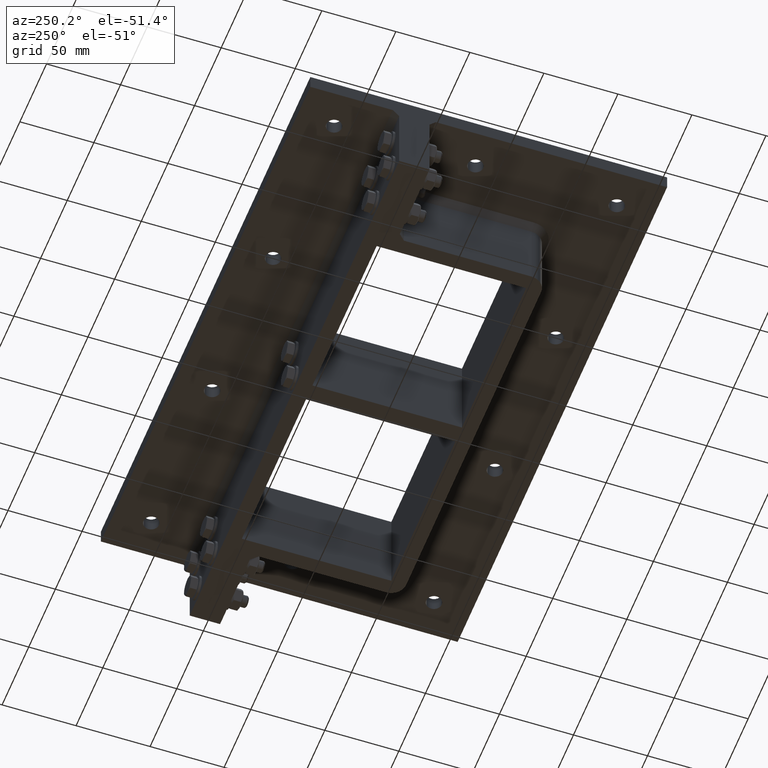
[diagram: clean part render]
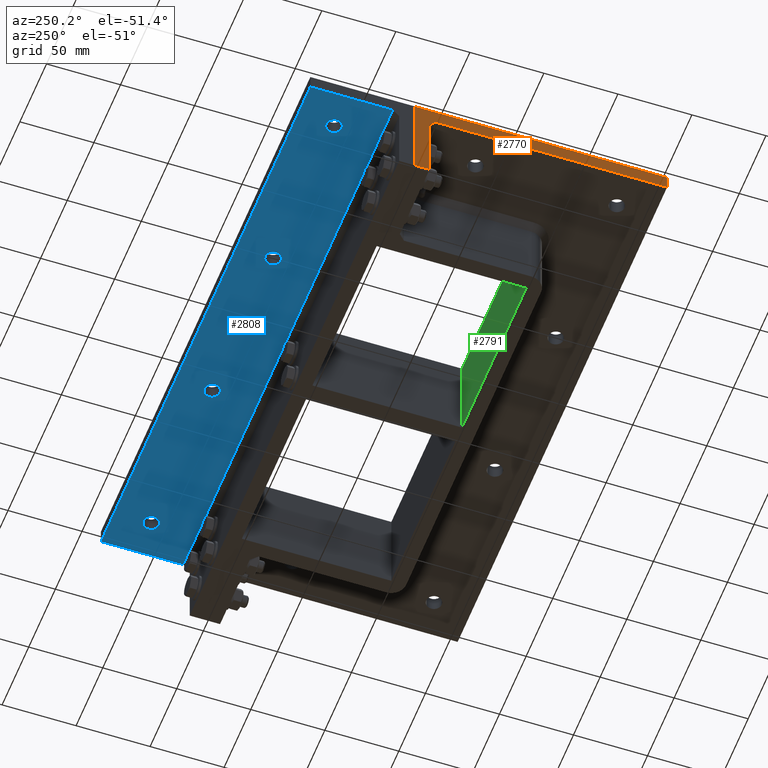
[diagram: same view with three faces highlighted in distinct colors, each labeled with its STEP entity id]
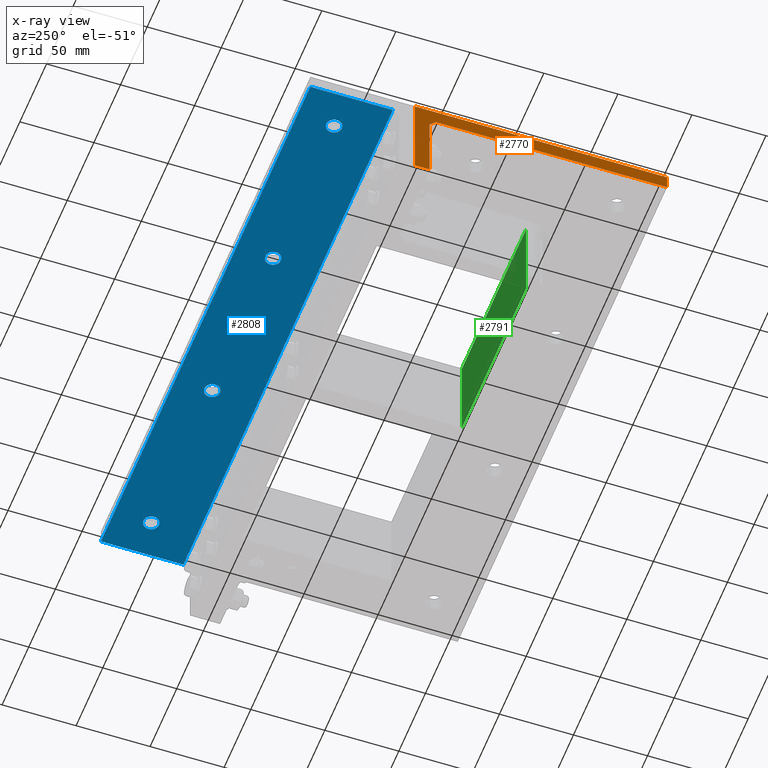
[diagram: x-ray of the same camera — body ghosted, the three highlighted faces saturated]
A machine part, auxiliary view with three faces highlighted in distinct colors.
The next image is the same camera in x-ray (body ghosted, the three faces saturated) — at least one of them is partly hidden behind the body in this view.
Their STEP definitions:

[orange] entity #2770 — the highlighted planar face has unit normal (-1, -0, 0).
#475=FACE_OUTER_BOUND('',#646,.T.);
#646=EDGE_LOOP('',(#2029,#2030,#2031,#2032,#2033,#2034,#2035));
#851=LINE('',#4275,#1070);
#876=LINE('',#4332,#1095);
#880=LINE('',#4347,#1099);
#899=LINE('',#4433,#1118);
#900=LINE('',#4435,#1119);
#901=LINE('',#4437,#1120);
#902=LINE('',#4438,#1121);
#1070=VECTOR('',#3435,10.);
#1095=VECTOR('',#3488,10.);
#1099=VECTOR('',#3502,10.);
#1118=VECTOR('',#3595,10.);
#1119=VECTOR('',#3596,10.);
#1120=VECTOR('',#3597,10.);
#1121=VECTOR('',#3598,10.);
#1289=VERTEX_POINT('',#4273);
#1290=VERTEX_POINT('',#4274);
#1308=VERTEX_POINT('',#4331);
#1314=VERTEX_POINT('',#4345);
#1344=VERTEX_POINT('',#4432);
#1345=VERTEX_POINT('',#4434);
#1346=VERTEX_POINT('',#4436);
#1532=EDGE_CURVE('',#1289,#1290,#851,.T.);
#1561=EDGE_CURVE('',#1290,#1308,#876,.T.);
#1569=EDGE_CURVE('',#1314,#1289,#880,.T.);
#1610=EDGE_CURVE('',#1344,#1314,#899,.T.);
#1611=EDGE_CURVE('',#1345,#1344,#900,.T.);
#1612=EDGE_CURVE('',#1345,#1346,#901,.T.);
#1613=EDGE_CURVE('',#1308,#1346,#902,.T.);
#2029=ORIENTED_EDGE('',*,*,#1569,.F.);
#2030=ORIENTED_EDGE('',*,*,#1610,.F.);
#2031=ORIENTED_EDGE('',*,*,#1611,.F.);
#2032=ORIENTED_EDGE('',*,*,#1612,.T.);
#2033=ORIENTED_EDGE('',*,*,#1613,.F.);
#2034=ORIENTED_EDGE('',*,*,#1561,.F.);
#2035=ORIENTED_EDGE('',*,*,#1532,.F.);
#2670=PLANE('',#3173);
#2770=ADVANCED_FACE('',(#475),#2670,.T.);
#3173=AXIS2_PLACEMENT_3D('',#4431,#3593,#3594);
#3435=DIRECTION('',(-2.08477006962161E-16,0.707106781186547,-0.707106781186548));
#3488=DIRECTION('',(0.,0.,-1.));
#3502=DIRECTION('',(-2.94831010688838E-16,1.,0.));
#3593=DIRECTION('center_axis',(-1.,-2.94831010688838E-16,0.));
#3594=DIRECTION('ref_axis',(-2.94831010688838E-16,1.,0.));
#3595=DIRECTION('',(0.,0.,-1.));
#3596=DIRECTION('',(2.94831010688838E-16,-1.,0.));
#3597=DIRECTION('',(0.,0.,-1.));
#3598=DIRECTION('',(3.5527136788005E-15,1.,0.));
#4273=CARTESIAN_POINT('',(-196.5,35.7,-10.));
#4274=CARTESIAN_POINT('',(-196.5,40.,-14.3));
#4275=CARTESIAN_POINT('',(-196.5,-4.77499999999992,30.475));
#4331=CARTESIAN_POINT('',(-196.5,40.,-60.));
#4332=CARTESIAN_POINT('',(-196.5,40.,0.));
#4345=CARTESIAN_POINT('',(-196.5,-120.5,-10.));
#4347=CARTESIAN_POINT('',(-196.5,120.5,-10.));
#4431=CARTESIAN_POINT('Origin',(-196.5,-120.5,0.));
#4432=CARTESIAN_POINT('',(-196.5,-120.5,0.));
#4433=CARTESIAN_POINT('',(-196.5,-120.5,0.));
#4434=CARTESIAN_POINT('',(-196.5,50.,0.));
#4435=CARTESIAN_POINT('',(-196.5,120.5,0.));
#4436=CARTESIAN_POINT('',(-196.5,50.,-60.));
#4437=CARTESIAN_POINT('',(-196.5,50.,0.));
#4438=CARTESIAN_POINT('',(-196.5,50.,-60.));

[blue] entity #2808 — the highlighted planar face has unit normal (0, 0, 1).
#263=FACE_BOUND('',#715,.T.);
#264=FACE_BOUND('',#716,.T.);
#265=FACE_BOUND('',#717,.T.);
#266=FACE_BOUND('',#718,.T.);
#367=CIRCLE('',#3245,5.25);
#368=CIRCLE('',#3246,5.25);
#369=CIRCLE('',#3247,5.25);
#370=CIRCLE('',#3248,5.25);
#513=FACE_OUTER_BOUND('',#714,.T.);
#714=EDGE_LOOP('',(#2244,#2245,#2246,#2247));
#715=EDGE_LOOP('',(#2248));
#716=EDGE_LOOP('',(#2249));
#717=EDGE_LOOP('',(#2250));
#718=EDGE_LOOP('',(#2251));
#946=LINE('',#4544,#1165);
#964=LINE('',#4630,#1183);
#968=LINE('',#4637,#1187);
#969=LINE('',#4638,#1188);
#1165=VECTOR('',#3708,10.);
#1183=VECTOR('',#3800,10.);
#1187=VECTOR('',#3806,10.);
#1188=VECTOR('',#3807,10.);
#1372=VERTEX_POINT('',#4537);
#1375=VERTEX_POINT('',#4542);
#1406=VERTEX_POINT('',#4629);
#1408=VERTEX_POINT('',#4636);
#1409=VERTEX_POINT('',#4639);
#1410=VERTEX_POINT('',#4641);
#1411=VERTEX_POINT('',#4643);
#1412=VERTEX_POINT('',#4645);
#1665=EDGE_CURVE('',#1375,#1372,#946,.T.);
#1707=EDGE_CURVE('',#1406,#1372,#964,.T.);
#1711=EDGE_CURVE('',#1375,#1408,#968,.T.);
#1712=EDGE_CURVE('',#1408,#1406,#969,.T.);
#1713=EDGE_CURVE('',#1409,#1409,#367,.T.);
#1714=EDGE_CURVE('',#1410,#1410,#368,.T.);
#1715=EDGE_CURVE('',#1411,#1411,#369,.T.);
#1716=EDGE_CURVE('',#1412,#1412,#370,.T.);
#2244=ORIENTED_EDGE('',*,*,#1665,.F.);
#2245=ORIENTED_EDGE('',*,*,#1711,.T.);
#2246=ORIENTED_EDGE('',*,*,#1712,.T.);
#2247=ORIENTED_EDGE('',*,*,#1707,.T.);
#2248=ORIENTED_EDGE('',*,*,#1713,.T.);
#2249=ORIENTED_EDGE('',*,*,#1714,.T.);
#2250=ORIENTED_EDGE('',*,*,#1715,.T.);
#2251=ORIENTED_EDGE('',*,*,#1716,.T.);
#2690=PLANE('',#3244);
#2808=ADVANCED_FACE('',(#513,#263,#264,#265,#266),#2690,.F.);
#3244=AXIS2_PLACEMENT_3D('',#4635,#3804,#3805);
#3245=AXIS2_PLACEMENT_3D('',#4640,#3808,#3809);
#3246=AXIS2_PLACEMENT_3D('',#4642,#3810,#3811);
#3247=AXIS2_PLACEMENT_3D('',#4644,#3812,#3813);
#3248=AXIS2_PLACEMENT_3D('',#4646,#3814,#3815);
#3708=DIRECTION('',(1.,1.05317599173928E-16,0.));
#3800=DIRECTION('',(0.,-1.,0.));
#3804=DIRECTION('center_axis',(0.,0.,1.));
#3805=DIRECTION('ref_axis',(1.,0.,0.));
#3806=DIRECTION('',(-2.94831010688838E-16,1.,0.));
#3807=DIRECTION('',(1.,9.0399839155229E-17,0.));
#3808=DIRECTION('center_axis',(0.,0.,1.));
#3809=DIRECTION('ref_axis',(1.,0.,0.));
#3810=DIRECTION('center_axis',(0.,0.,1.));
#3811=DIRECTION('ref_axis',(1.,0.,0.));
#3812=DIRECTION('center_axis',(0.,0.,1.));
#3813=DIRECTION('ref_axis',(1.,0.,0.));
#3814=DIRECTION('center_axis',(0.,0.,1.));
#3815=DIRECTION('ref_axis',(1.,0.,0.));
#4537=CARTESIAN_POINT('',(196.5,64.8,-10.));
#4542=CARTESIAN_POINT('',(-196.5,64.8,-10.));
#4544=CARTESIAN_POINT('',(-63.2499999999999,64.8,-10.));
#4629=CARTESIAN_POINT('',(196.5,120.5,-10.));
#4630=CARTESIAN_POINT('',(196.5,-120.5,-10.));
#4635=CARTESIAN_POINT('Origin',(1.06581410364015E-13,1.77635683940025E-13,
-10.));
#4636=CARTESIAN_POINT('',(-196.5,120.5,-10.));
#4637=CARTESIAN_POINT('',(-196.5,120.5,-10.));
#4638=CARTESIAN_POINT('',(196.5,120.5,-10.));
#4639=CARTESIAN_POINT('',(-176.75,95.5000000000002,-10.));
#4640=CARTESIAN_POINT('Origin',(-171.5,95.5000000000002,-10.));
#4641=CARTESIAN_POINT('',(166.25,95.5000000000002,-10.));
#4642=CARTESIAN_POINT('Origin',(171.5,95.5000000000002,-10.));
#4643=CARTESIAN_POINT('',(51.9166666666668,95.5000000000002,-10.));
#4644=CARTESIAN_POINT('Origin',(57.1666666666668,95.5000000000002,-10.));
#4645=CARTESIAN_POINT('',(-62.4166666666665,95.5000000000001,-10.));
#4646=CARTESIAN_POINT('Origin',(-57.1666666666665,95.5000000000001,-10.));

[green] entity #2791 — the highlighted planar face has unit normal (0, -1, 0).
#496=FACE_OUTER_BOUND('',#683,.T.);
#683=EDGE_LOOP('',(#2159,#2160,#2161,#2162));
#896=LINE('',#4427,#1115);
#907=LINE('',#4449,#1126);
#925=LINE('',#4485,#1144);
#931=LINE('',#4508,#1150);
#1115=VECTOR('',#3590,10.);
#1126=VECTOR('',#3607,10.);
#1144=VECTOR('',#3631,10.);
#1150=VECTOR('',#3659,10.);
#1340=VERTEX_POINT('',#4423);
#1342=VERTEX_POINT('',#4426);
#1350=VERTEX_POINT('',#4448);
#1365=VERTEX_POINT('',#4483);
#1607=EDGE_CURVE('',#1340,#1342,#896,.T.);
#1618=EDGE_CURVE('',#1342,#1350,#907,.T.);
#1638=EDGE_CURVE('',#1365,#1340,#925,.T.);
#1650=EDGE_CURVE('',#1365,#1350,#931,.T.);
#2159=ORIENTED_EDGE('',*,*,#1618,.F.);
#2160=ORIENTED_EDGE('',*,*,#1607,.F.);
#2161=ORIENTED_EDGE('',*,*,#1638,.F.);
#2162=ORIENTED_EDGE('',*,*,#1650,.T.);
#2684=PLANE('',#3202);
#2791=ADVANCED_FACE('',(#496),#2684,.F.);
#3202=AXIS2_PLACEMENT_3D('',#4531,#3694,#3695);
#3590=DIRECTION('',(0.,0.,-1.));
#3607=DIRECTION('',(1.,7.37077526722096E-17,0.));
#3631=DIRECTION('',(-1.,-7.37077526722096E-17,0.));
#3659=DIRECTION('',(0.,0.,-1.));
#3694=DIRECTION('center_axis',(7.37077526722096E-17,-1.,0.));
#3695=DIRECTION('ref_axis',(-1.,-7.37077526722096E-17,0.));
#4423=CARTESIAN_POINT('',(-126.5,-50.5,0.));
#4426=CARTESIAN_POINT('',(-126.5,-50.5,-60.));
#4427=CARTESIAN_POINT('',(-126.5,-50.5,0.));
#4448=CARTESIAN_POINT('',(-6.,-50.5,-60.));
#4449=CARTESIAN_POINT('',(-3.,-50.5,-60.));
#4483=CARTESIAN_POINT('',(-6.,-50.5,0.));
#4485=CARTESIAN_POINT('',(-3.,-50.5,0.));
#4508=CARTESIAN_POINT('',(-6.,-50.5,0.));
#4531=CARTESIAN_POINT('Origin',(-6.,-50.5,0.));